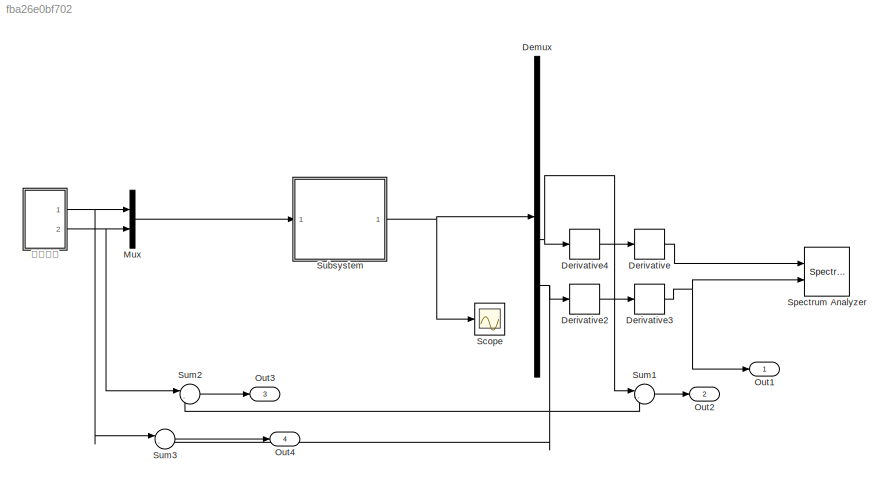
MODEL slx_fba26e0bf702
KIND model
BLOCK [Demux] Demux
  DisplayOption = bar
  Outputs = 6
  Ports = [1, 6]
BLOCK [Derivative] Derivative
BLOCK [Derivative] Derivative2
BLOCK [Derivative] Derivative3
BLOCK [Derivative] Derivative4
BLOCK [Mux] Mux
  DisplayOption = bar
  Inputs = 2
  Ports = [2, 1]
BLOCK [Outport] Out1
  IconDisplay = Port number
BLOCK [Outport] Out2
  IconDisplay = Port number
  Port = 2
BLOCK [Outport] Out3
  IconDisplay = Port number
  Port = 3
BLOCK [Outport] Out4
  IconDisplay = Port number
  Port = 4
BLOCK [Scope] Scope
  Floating = off
  NumInputPorts = 1
  Ports = [1]
  SaveName = ScopeData1
  ShowLegends = off
BLOCK [Reference] Spectrum Analyzer  REF=simulink_extras/Additional
Sinks/Spectrum
Analyzer
  HowOften = 64
  Ports = [2]
  SourceBlock = simulink_extras/Additional\nSinks/Spectrum\nAnalyzer
  SourceType = Spectrum Analyzer
  fftpts = 256
  npts = 256
  sampleT = 0.1
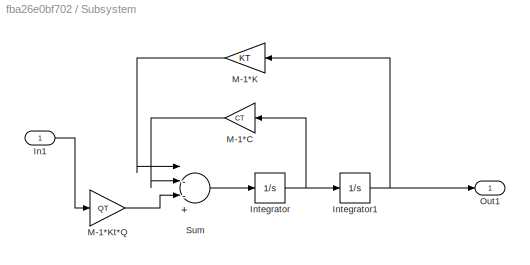
BLOCK [SubSystem] Subsystem
  Ports = [1, 1]
  RequestExecContextInheritance = off
BLOCK [Inport] Subsystem/In1
  IconDisplay = Port number
BLOCK [Integrator] Subsystem/Integrator
  Ports = [1, 1]
BLOCK [Integrator] Subsystem/Integrator1
  Ports = [1, 1]
BLOCK [Gain] Subsystem/M-1*C
  Gain = CT
  Multiplication = Matrix(K*u)
  OutDataTypeStr = Inherit: Inherit via internal rule
  ParamDataTypeStr = Inherit: Inherit via internal rule
  SaturateOnIntegerOverflow = off
BLOCK [Gain] Subsystem/M-1*K
  Gain = KT
  Multiplication = Matrix(K*u)
  OutDataTypeStr = Inherit: Inherit via internal rule
  ParamDataTypeStr = Inherit: Inherit via internal rule
  SaturateOnIntegerOverflow = off
BLOCK [Gain] Subsystem/M-1*Kt*Q
  Gain = QT
  Multiplication = Matrix(K*u)
  OutDataTypeStr = Inherit: Inherit via internal rule
  ParamDataTypeStr = Inherit: Inherit via internal rule
  SaturateOnIntegerOverflow = off
BLOCK [Outport] Subsystem/Out1
  IconDisplay = Port number
BLOCK [Sum] Subsystem/Sum
  InputSameDT = off
  Inputs = |--++
  OutDataTypeStr = Inherit: Inherit via internal rule
  Ports = [4, 1]
  SaturateOnIntegerOverflow = off
BLOCK [Sum] Sum1
  IconShape = round
  InputSameDT = off
  Inputs = |-+
  OutDataTypeStr = Inherit: Inherit via internal rule
  Ports = [2, 1]
  SaturateOnIntegerOverflow = off
BLOCK [Sum] Sum2
  IconShape = round
  InputSameDT = off
  Inputs = |-+
  OutDataTypeStr = Inherit: Inherit via internal rule
  Ports = [2, 1]
  SaturateOnIntegerOverflow = off
BLOCK [Sum] Sum3
  IconShape = round
  InputSameDT = off
  Inputs = |-+
  OutDataTypeStr = Inherit: Inherit via internal rule
  Ports = [2, 1]
  SaturateOnIntegerOverflow = off
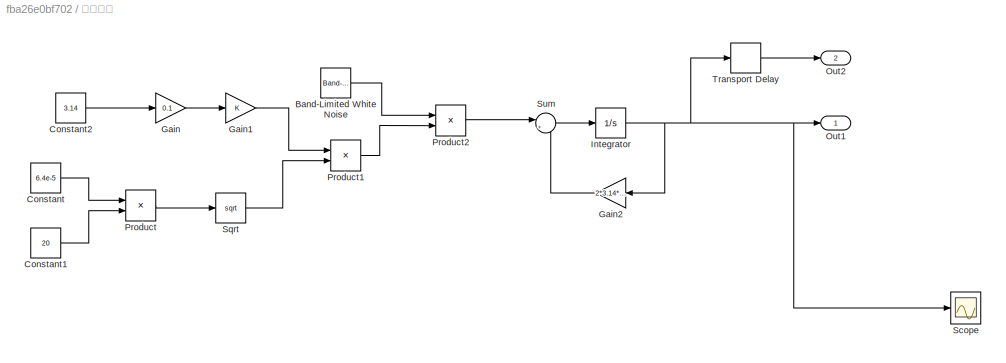
BLOCK [SubSystem] 路面激励 
  Ports = [0, 2]
  RequestExecContextInheritance = off
BLOCK [Reference] 路面激励 /Band-Limited White Noise  REF=simulink/Sources/Band-Limited
White Noise
  Cov = [0.1]
  Ports = [0, 1]
  SourceBlock = simulink/Sources/Band-Limited\nWhite Noise
  SourceType = Band-Limited White Noise.
  Ts = 0.1
  VectorParams1D = on
  seed = [23341]
BLOCK [Constant] 路面激励 /Constant
  Value = 6.4e-5
BLOCK [Constant] 路面激励 /Constant1
  Value = 20
BLOCK [Constant] 路面激励 /Constant2
  Value = 3.14
BLOCK [Gain] 路面激励 /Gain
  Gain = 0.1
  OutDataTypeStr = Inherit: Inherit via internal rule
  ParamDataTypeStr = Inherit: Inherit via internal rule
  SaturateOnIntegerOverflow = off
BLOCK [Gain] 路面激励 /Gain1
  OutDataTypeStr = Inherit: Inherit via internal rule
  ParamDataTypeStr = Inherit: Inherit via internal rule
  SaturateOnIntegerOverflow = off
BLOCK [Gain] 路面激励 /Gain2
  Gain = 2*3.14*0.1*20
  OutDataTypeStr = Inherit: Inherit via internal rule
  ParamDataTypeStr = Inherit: Inherit via internal rule
  SaturateOnIntegerOverflow = off
BLOCK [Integrator] 路面激励 /Integrator
  Ports = [1, 1]
BLOCK [Outport] 路面激励 /Out1
  IconDisplay = Port number
BLOCK [Outport] 路面激励 /Out2
  IconDisplay = Port number
  Port = 2
BLOCK [Product] 路面激励 /Product
  InputSameDT = off
  OutDataTypeStr = Inherit: Inherit via internal rule
  Ports = [2, 1]
  RndMeth = Floor
  SaturateOnIntegerOverflow = off
BLOCK [Product] 路面激励 /Product1
  InputSameDT = off
  OutDataTypeStr = Inherit: Inherit via internal rule
  Ports = [2, 1]
  RndMeth = Floor
  SaturateOnIntegerOverflow = off
BLOCK [Product] 路面激励 /Product2
  InputSameDT = off
  OutDataTypeStr = Inherit: Inherit via internal rule
  Ports = [2, 1]
  RndMeth = Floor
  SaturateOnIntegerOverflow = off
BLOCK [Scope] 路面激励 /Scope
  Floating = off
  NumInputPorts = 1
  Ports = [1]
  ShowLegends = off
BLOCK [Sqrt] 路面激励 /Sqrt
BLOCK [Sum] 路面激励 /Sum
  IconShape = round
  InputSameDT = off
  Inputs = |+-
  OutDataTypeStr = Inherit: Inherit via internal rule
  Ports = [2, 1]
  SaturateOnIntegerOverflow = off
BLOCK [TransportDelay] 路面激励 /Transport Delay
  Ports = [1, 1]
NET Demux:4 -> Derivative4:1, Sum1:1
NET Demux:5 -> Derivative2:1, Sum1:2, Sum2:2, Sum3:2
LINE Derivative2:1 -> Derivative3:1
NET Derivative3:1 -> Out1:1, Spectrum Analyzer:2
LINE Derivative4:1 -> Derivative:1
LINE Derivative:1 -> Spectrum Analyzer:1
LINE Mux:1 -> Subsystem:1
LINE Subsystem/In1:1 -> Subsystem/M-1*Kt*Q:1
NET Subsystem/Integrator1:1 -> Subsystem/M-1*K:1, Subsystem/Out1:1
NET Subsystem/Integrator:1 -> Subsystem/Integrator1:1, Subsystem/M-1*C:1
LINE Subsystem/M-1*C:1 -> Subsystem/Sum:2
LINE Subsystem/M-1*K:1 -> Subsystem/Sum:1
LINE Subsystem/M-1*Kt*Q:1 -> Subsystem/Sum:3
LINE Subsystem/Sum:1 -> Subsystem/Integrator:1
NET Subsystem:1 -> Demux:1, Scope:1
LINE Sum1:1 -> Out2:1
LINE Sum2:1 -> Out3:1
LINE Sum3:1 -> Out4:1
LINE 路面激励 /Band-Limited White Noise:1 -> 路面激励 /Product2:1
LINE 路面激励 /Constant1:1 -> 路面激励 /Product:2
LINE 路面激励 /Constant2:1 -> 路面激励 /Gain:1
LINE 路面激励 /Constant:1 -> 路面激励 /Product:1
LINE 路面激励 /Gain1:1 -> 路面激励 /Product1:1
LINE 路面激励 /Gain2:1 -> 路面激励 /Sum:2
LINE 路面激励 /Gain:1 -> 路面激励 /Gain1:1
NET 路面激励 /Integrator:1 -> 路面激励 /Gain2:1, 路面激励 /Out1:1, 路面激励 /Scope:1, 路面激励 /Transport Delay:1
LINE 路面激励 /Product1:1 -> 路面激励 /Product2:2
LINE 路面激励 /Product2:1 -> 路面激励 /Sum:1
LINE 路面激励 /Product:1 -> 路面激励 /Sqrt:1
LINE 路面激励 /Sqrt:1 -> 路面激励 /Product1:2
LINE 路面激励 /Sum:1 -> 路面激励 /Integrator:1
LINE 路面激励 /Transport Delay:1 -> 路面激励 /Out2:1
NET 路面激励 :1 -> Mux:1, Sum3:1
NET 路面激励 :2 -> Mux:2, Sum2:1
note: NET lines group one-source signal fan-out (src -> all destinations, sorted); 1:1 wires keep LINE
